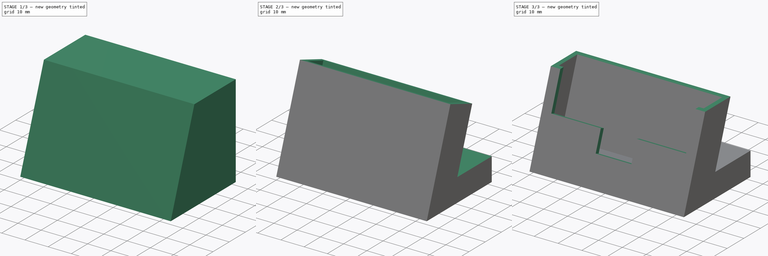
[diagram: build sequence overview — one tinted view per stage of 3, left to right]
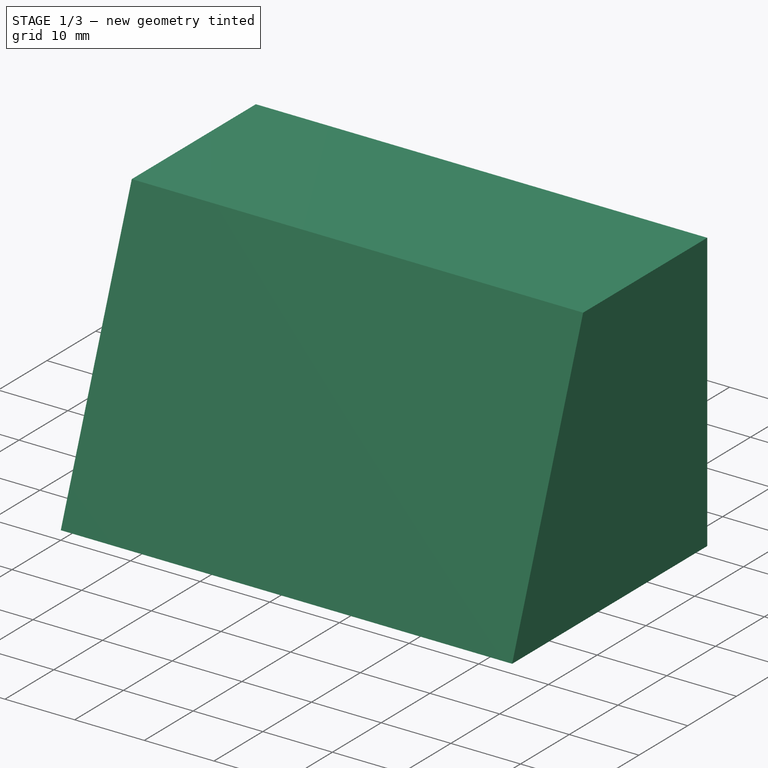
[diagram: stage 1 of 3 — iso view after this stage's code; geometry added in this stage tinted green]
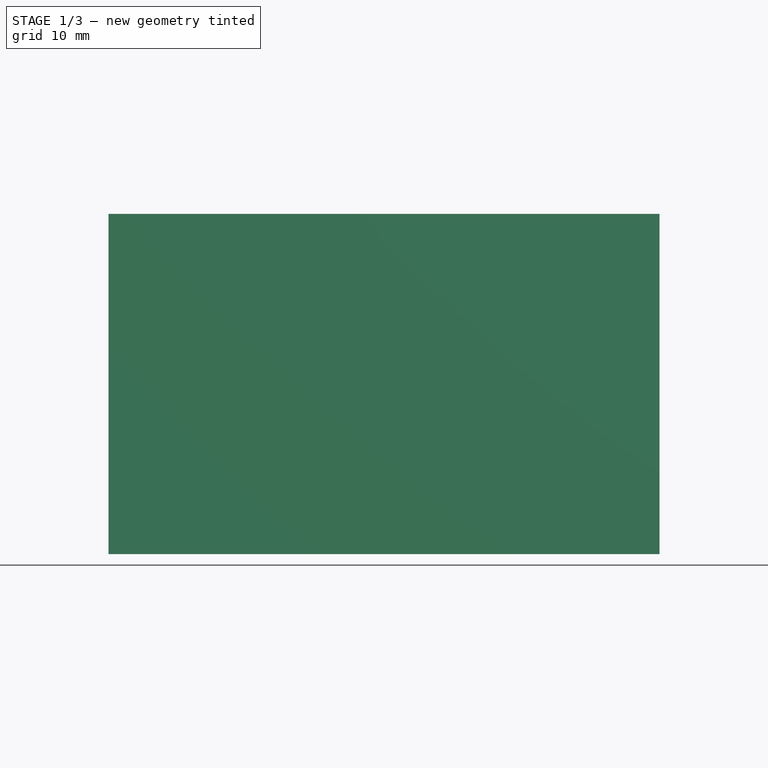
[diagram: stage 1 of 3 — front view after this stage's code; geometry added in this stage tinted green]
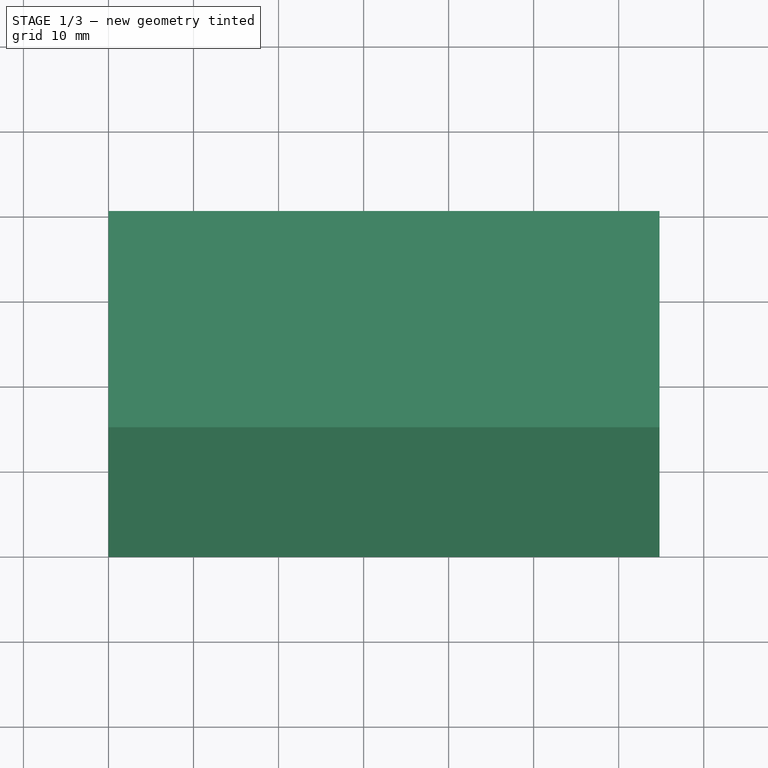
[diagram: stage 1 of 3 — top view after this stage's code; geometry added in this stage tinted green]
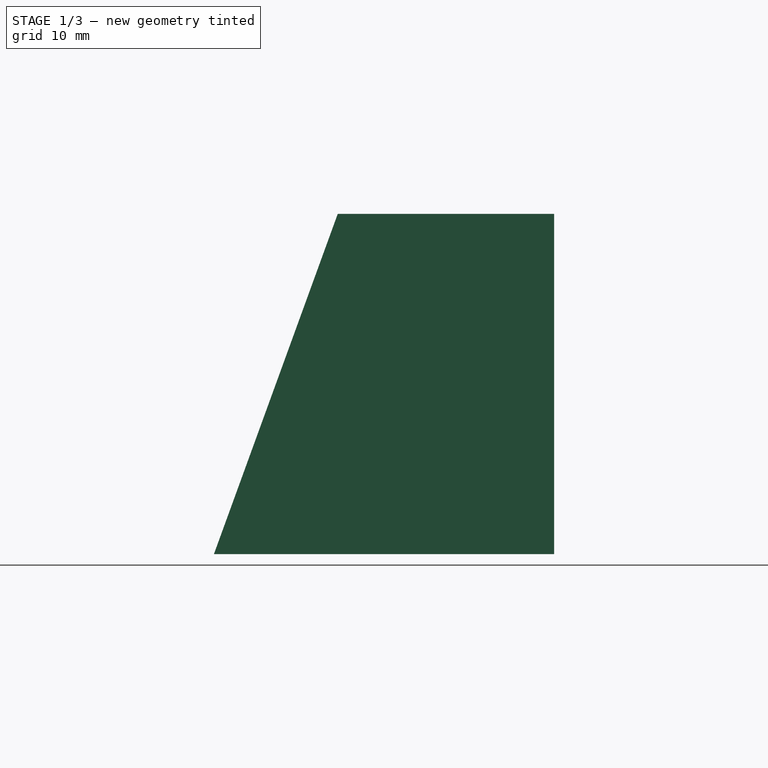
[diagram: stage 1 of 3 — right view after this stage's code; geometry added in this stage tinted green]
FCSTD DOCUMENT  (FreeCAD 0.16R6706 (Git))
Label: dock2
License: All rights reserved
LicenseURL: http://en.wikipedia.org/wiki/All_rights_reserved
objects: Sketcher::SketchObject×7, PartDesign::Pocket×6, PartDesign::Pad×1
note: 21 computed .brp shape members not serialized (recipe doc carries the construction recipe); baked Part::Feature solids carry a one-line shape summary decoded from their .brp

FEATURE [Sketcher::SketchObject] Sketch
  sketch-geometry (7):
    g0: LineSegment [constr] StartX=2 StartY=5.79943 StartZ=0 EndX=62.8 EndY=5.79943 EndZ=0
    g1: LineSegment StartX=0 StartY=0 StartZ=0 EndX=64.8 EndY=0 EndZ=0
    g2: LineSegment StartX=64.8 StartY=0 StartZ=0 EndX=64.8 EndY=40 EndZ=0
    g3: LineSegment StartX=64.8 StartY=40 StartZ=0 EndX=0 EndY=40 EndZ=0
    g4: LineSegment StartX=0 StartY=40 StartZ=0 EndX=0 EndY=0 EndZ=0
    g5: LineSegment [constr] StartX=2 StartY=5.79943 StartZ=0 EndX=0 EndY=5.79943 EndZ=0
    g6: LineSegment [constr] StartX=62.8 StartY=5.79943 StartZ=0 EndX=64.8 EndY=5.79943 EndZ=0
  constraints (20):
    c: Horizontal(g0)
    c: DistanceX(g0,g0) = 60.8
    c: Coincident(g1,g2)
    c: Coincident(g2,g3)
    c: Coincident(g3,g4)
    c: Coincident(g4,g1)
    c: Horizontal(g1)
    c: Horizontal(g3)
    c: Vertical(g2)
    c: Vertical(g4)
    c: Coincident(g1,g-1)
    c: Coincident(g5,g0)
    c: PointOnObject(g5,g4)
    c: Horizontal(g5)
    c: DistanceX(g5,g5) = 2
    c: Coincident(g6,g0)
    c: PointOnObject(g6,g2)
    c: Equal(g6,g5)
    c: Horizontal(g6)
    c: DistanceY(g2,g2) = 40
FEATURE [PartDesign::Pad] Pad
  Length = 40
  Length2 = 100
  Sketch = -> Sketch
  Type = 0
FEATURE [Sketcher::SketchObject] Sketch001
  ExternalGeometry = -> [Pad]
  Placement = pos=(64.8,0,0) rot=(0.57735,0.57735,0.57735;2.0944rad)
  Support = -> Pad [Face2]
  sketch-geometry (3):
    g0: LineSegment StartX=0 StartY=0 StartZ=0 EndX=0 EndY=40 EndZ=0
    g1: LineSegment StartX=0 StartY=0 StartZ=0 EndX=14.5588 EndY=40 EndZ=0
    g2: LineSegment StartX=14.5588 StartY=40 StartZ=0 EndX=0 EndY=40 EndZ=0
  constraints (7):
    c: Coincident(g0,g-1)
    c: Coincident(g0,g-4)
    c: Coincident(g1,g-1)
    c: PointOnObject(g1,g-4)
    c: Coincident(g2,g1)
    c: Coincident(g2,g0)
    c: Angle(g1,g-3) = 0.349066
FEATURE [PartDesign::Pocket] Pocket
  Length = 5
  Sketch = -> Sketch001
  Type = 1
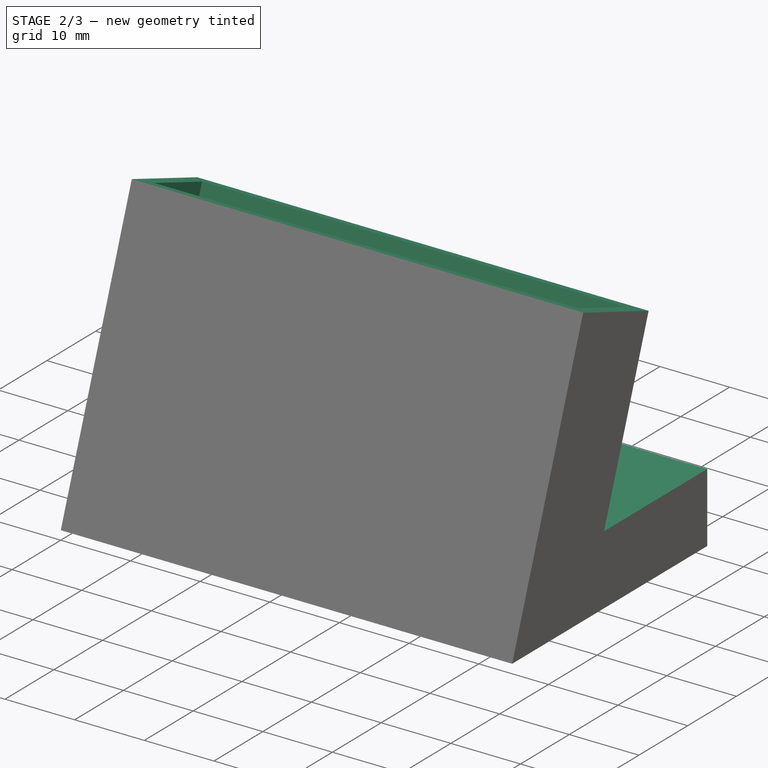
[diagram: stage 2 of 3 — iso view after this stage's code; geometry added in this stage tinted green]
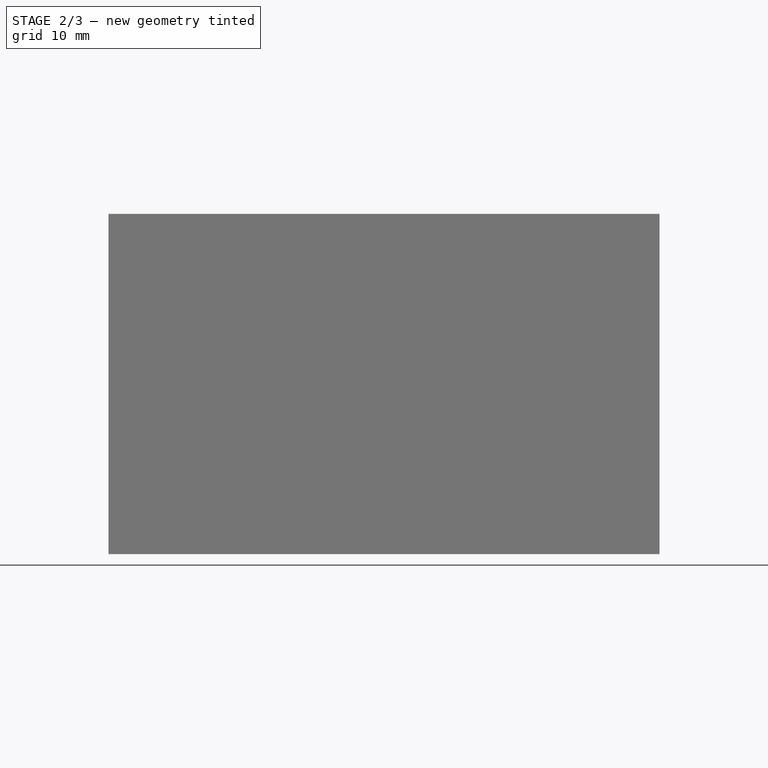
[diagram: stage 2 of 3 — front view after this stage's code; geometry added in this stage tinted green]
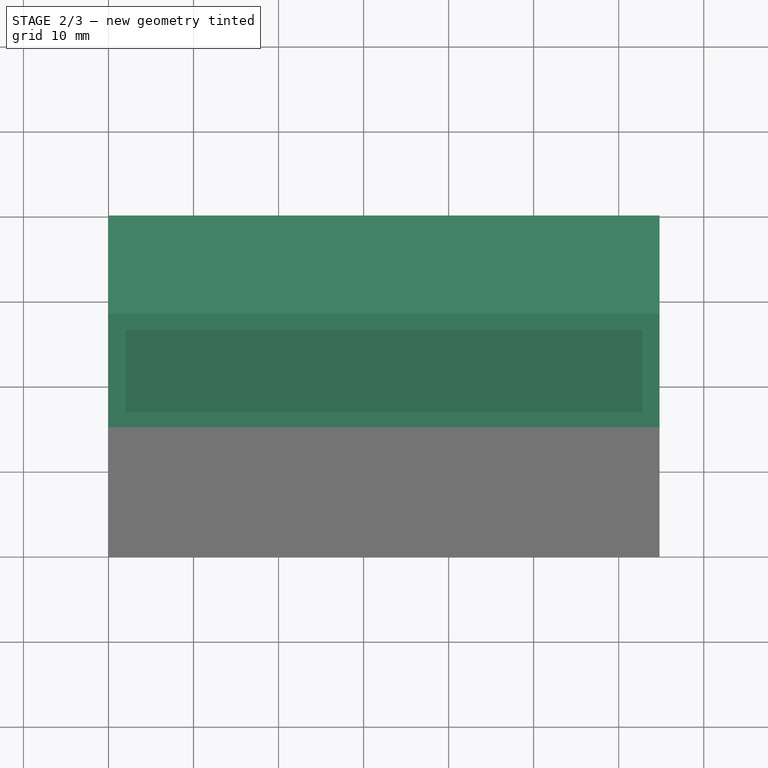
[diagram: stage 2 of 3 — top view after this stage's code; geometry added in this stage tinted green]
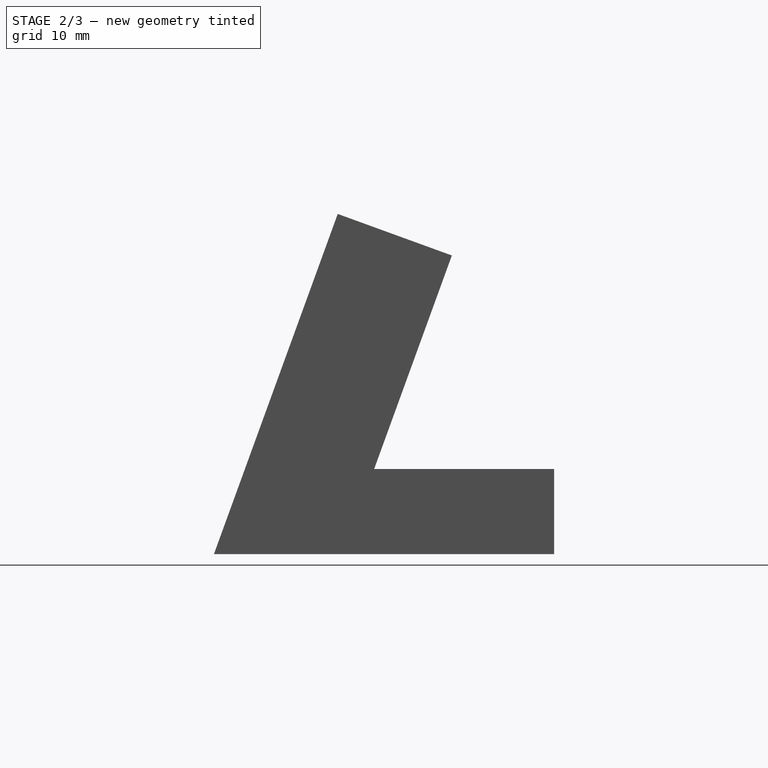
[diagram: stage 2 of 3 — right view after this stage's code; geometry added in this stage tinted green]
FEATURE [Sketcher::SketchObject] Sketch002
  ExternalGeometry = -> [Pocket]
  Placement = pos=(64.8,0,0) rot=(0.57735,0.57735,0.57735;2.0944rad)
  Support = -> Pocket [Face3]
  sketch-geometry (4):
    g0: LineSegment StartX=29.7588 StartY=40 StartZ=0 EndX=18.8397 EndY=10 EndZ=0
    g1: LineSegment StartX=18.8397 StartY=10 StartZ=0 EndX=40 EndY=10 EndZ=0
    g2: LineSegment StartX=29.7588 StartY=40 StartZ=0 EndX=40 EndY=40 EndZ=0
    g3: LineSegment StartX=40 StartY=40 StartZ=0 EndX=40 EndY=10 EndZ=0
  constraints (11):
    c: PointOnObject(g0,g-3)
    c: Coincident(g1,g0)
    c: PointOnObject(g1,g-4)
    c: Horizontal(g1)
    c: Parallel(g0,g-5)
    c: Coincident(g2,g0)
    c: Coincident(g2,g-4)
    c: Coincident(g3,g2)
    c: Coincident(g3,g1)
    c: DistanceX(g-5,g0) = 15.2
    c: DistanceY(g-4,g1) = 10
FEATURE [PartDesign::Pocket] Pocket001
  Length = 5
  Sketch = -> Sketch002
  Type = 1
FEATURE [Sketcher::SketchObject] Sketch003
  ExternalGeometry = -> [Pocket001]
  Placement = pos=(64.8,0,0) rot=(0.57735,0.57735,0.57735;2.0944rad)
  Support = -> Pocket001 [Face3]
  sketch-geometry (3):
    g0: LineSegment StartX=14.5588 StartY=40 StartZ=0 EndX=27.9807 EndY=35.1148 EndZ=0
    g1: LineSegment StartX=29.7588 StartY=40 StartZ=0 EndX=27.9807 EndY=35.1148 EndZ=0
    g2: LineSegment StartX=29.7588 StartY=40 StartZ=0 EndX=14.5588 EndY=40 EndZ=0
  constraints (7):
    c: Coincident(g0,g-3)
    c: PointOnObject(g0,g-4)
    c: Coincident(g1,g-4)
    c: Coincident(g1,g0)
    c: Coincident(g2,g1)
    c: Coincident(g2,g0)
    c: Perpendicular(g-4,g0)
FEATURE [PartDesign::Pocket] Pocket002
  Length = 5
  Sketch = -> Sketch003
  Type = 1
FEATURE [Sketcher::SketchObject] Sketch004
  ExternalGeometry = -> [Pocket002]
  Placement = pos=(0,14.5588,40) rot=(-1,0,0;0.349066rad)
  Support = -> Pocket002 [Face6]
  sketch-geometry (8):
    g0: LineSegment StartX=2 StartY=12.2833 StartZ=0 EndX=62.8 EndY=12.2833 EndZ=0
    g1: LineSegment StartX=62.8 StartY=12.2833 StartZ=0 EndX=62.8 EndY=1.88333 EndZ=0
    g2: LineSegment StartX=62.8 StartY=1.88333 StartZ=0 EndX=2 EndY=1.88333 EndZ=0
    g3: LineSegment StartX=2 StartY=1.88333 StartZ=0 EndX=2 EndY=12.2833 EndZ=0
    g4: LineSegment [constr] StartX=2 StartY=12.2833 StartZ=0 EndX=0 EndY=12.2833 EndZ=0
    g5: LineSegment [constr] StartX=2 StartY=12.2833 StartZ=0 EndX=2 EndY=14.2833 EndZ=0
    g6: LineSegment [constr] StartX=62.8 StartY=12.2833 StartZ=0 EndX=64.8 EndY=12.2833 EndZ=0
    g7: LineSegment [constr] StartX=62.8 StartY=12.2833 StartZ=0 EndX=62.8 EndY=14.2833 EndZ=0
  constraints (25):
    c: Coincident(g0,g1)
    c: Coincident(g1,g2)
    c: Coincident(g2,g3)
    c: Coincident(g3,g0)
    c: Horizontal(g0)
    c: Horizontal(g2)
    c: Vertical(g1)
    c: Vertical(g3)
    c: Coincident(g4,g0)
    c: PointOnObject(g4,g-3)
    c: Horizontal(g4)
    c: DistanceX(g4,g4) = 2
    c: Coincident(g5,g0)
    c: PointOnObject(g5,g-4)
    c: Vertical(g5)
    c: DistanceY(g5,g5) = 2
    c: Coincident(g6,g0)
    c: PointOnObject(g6,g-6)
    c: Horizontal(g6)
    c: Equal(g6,g4)
    c: Coincident(g7,g0)
    c: PointOnObject(g7,g-4)
    c: Vertical(g7)
    c: Equal(g7,g5)
    c: Distance(g3) = 10.4
FEATURE [PartDesign::Pocket] Pocket003
  Length = 30
  Sketch = -> Sketch004
  Type = 0
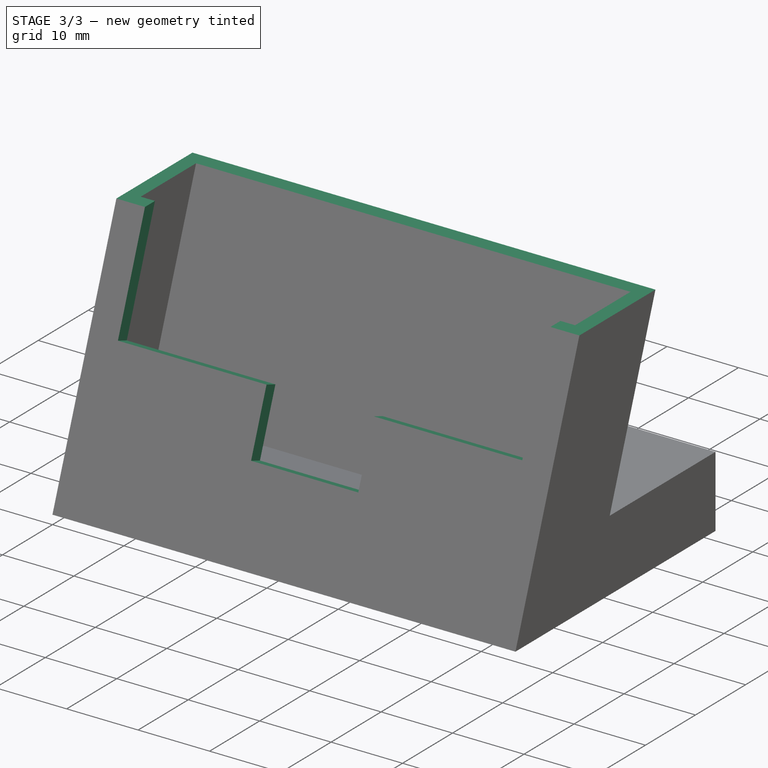
[diagram: stage 3 of 3 — iso view after this stage's code; geometry added in this stage tinted green]
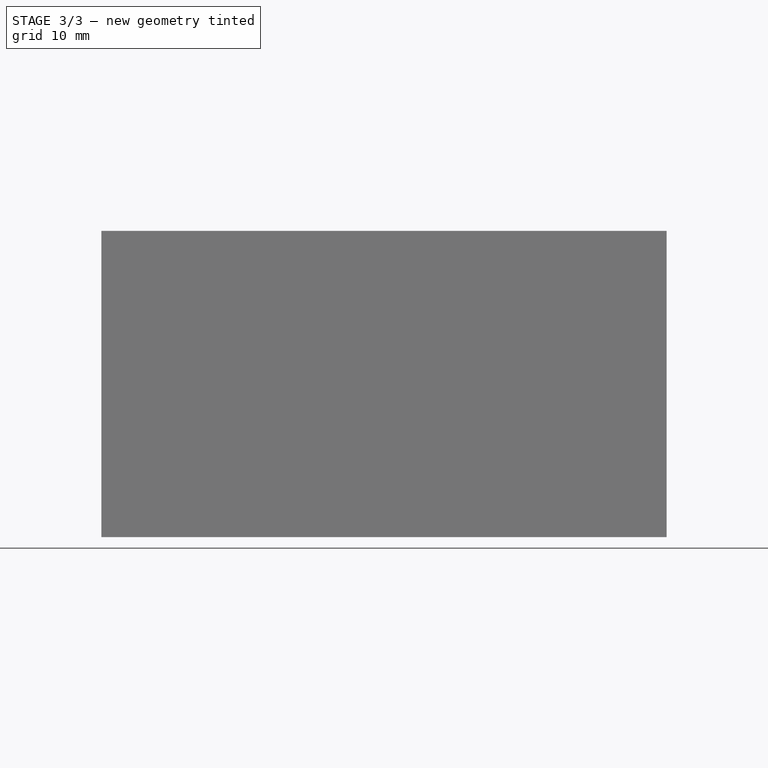
[diagram: stage 3 of 3 — front view after this stage's code; geometry added in this stage tinted green]
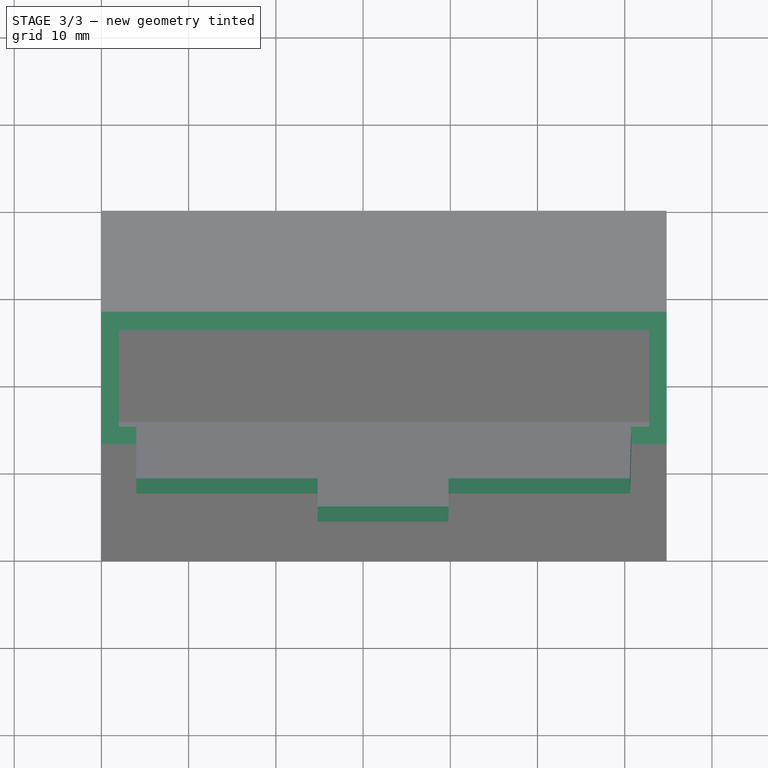
[diagram: stage 3 of 3 — top view after this stage's code; geometry added in this stage tinted green]
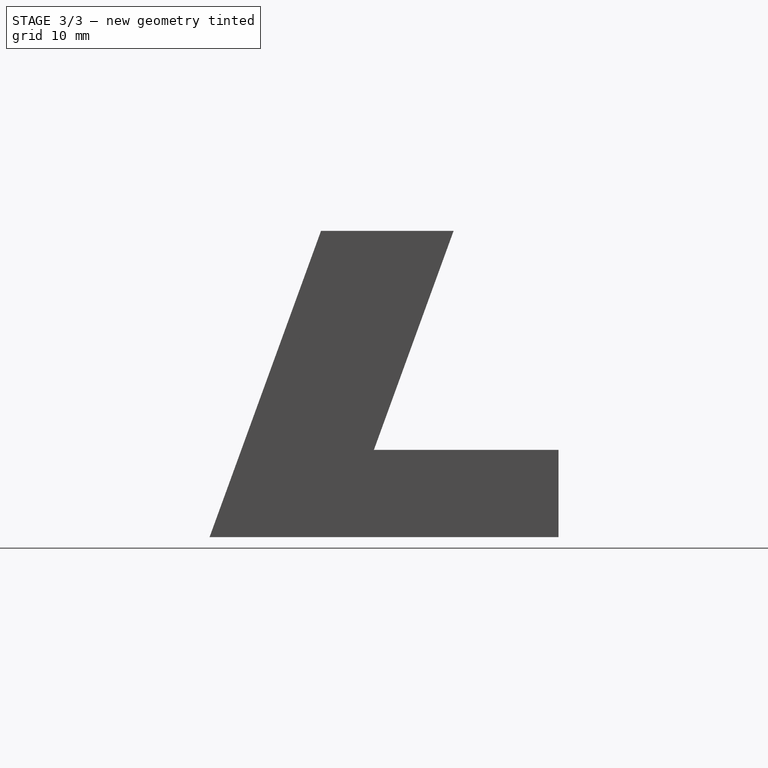
[diagram: stage 3 of 3 — right view after this stage's code; geometry added in this stage tinted green]
FEATURE [Sketcher::SketchObject] Sketch005
  ExternalGeometry = -> [Pocket003]
  Placement = pos=(0,1.76975,-0.644136) rot=(0,0.819152,0.573576;3.14159rad)
  Support = -> Pocket003 [Face12]
  sketch-geometry (12):
    g0: LineSegment StartX=-39.795 StartY=21.5671 StartZ=0 EndX=-39.795 EndY=12.5671 EndZ=0
    g1: LineSegment StartX=-24.795 StartY=21.5671 StartZ=0 EndX=-24.795 EndY=12.5671 EndZ=0
    g2: LineSegment [constr] StartX=-60.8 StartY=42.5671 StartZ=0 EndX=-60.5 EndY=12.5671 EndZ=0
    g3: LineSegment [constr] StartX=-4 StartY=42.5671 StartZ=0 EndX=-4 EndY=12.5671 EndZ=0
    g4: LineSegment [constr] StartX=-62.8 StartY=42.5671 StartZ=0 EndX=-60.8 EndY=42.5671 EndZ=0
    g5: LineSegment [constr] StartX=-2 StartY=42.5671 StartZ=0 EndX=-4 EndY=42.5671 EndZ=0
    g6: LineSegment StartX=-39.795 StartY=21.5671 StartZ=0 EndX=-60.59 EndY=21.5671 EndZ=0
    g7: LineSegment StartX=-24.795 StartY=21.5671 StartZ=0 EndX=-4 EndY=21.5671 EndZ=0
    g8: LineSegment StartX=-39.795 StartY=12.5671 StartZ=0 EndX=-24.795 EndY=12.5671 EndZ=0
    g9: LineSegment StartX=-4 StartY=21.5671 StartZ=0 EndX=-4 EndY=42.5671 EndZ=0
    g10: LineSegment StartX=-4 StartY=42.5671 StartZ=0 EndX=-60.8 EndY=42.5671 EndZ=0
    g11: LineSegment StartX=-60.8 StartY=42.5671 StartZ=0 EndX=-60.59 EndY=21.5671 EndZ=0
  constraints (33):
    c: PointOnObject(g0,g-6)
    c: Vertical(g0)
    c: DistanceY(g0,g0) = 9
    c: PointOnObject(g1,g-6)
    c: Vertical(g1)
    c: Equal(g1,g0)
    c: PointOnObject(g2,g-3)
    c: PointOnObject(g2,g-6)
    c: PointOnObject(g3,g-3)
    c: PointOnObject(g3,g-6)
    c: Vertical(g3)
    c: Coincident(g4,g-4)
    c: Coincident(g4,g2)
    c: DistanceX(g4,g4) = 2
    c: Coincident(g5,g-5)
    c: Coincident(g5,g3)
    c: Equal(g4,g5)
    c: Coincident(g6,g0)
    c: PointOnObject(g6,g2)
    c: Horizontal(g6)
    c: Coincident(g7,g1)
    c: PointOnObject(g7,g3)
    c: Horizontal(g7)
    c: DistanceX(g0,g1) = 15
    c: Equal(g7,g6)
    c: Coincident(g8,g0)
    c: Coincident(g8,g1)
    c: Coincident(g9,g7)
    c: Coincident(g9,g3)
    c: Coincident(g10,g3)
    c: Coincident(g10,g2)
    c: Coincident(g11,g2)
    c: Coincident(g11,g6)
FEATURE [PartDesign::Pocket] Pocket004
  Length = 5
  Sketch = -> Sketch005
  Type = 1
FEATURE [Sketcher::SketchObject] Sketch006
  ExternalGeometry = -> [Pocket004]
  Placement = pos=(64.8,0,0) rot=(0.57735,0.57735,0.57735;2.0944rad)
  Support = -> Pocket004 [Face3]
  sketch-geometry (3):
    g0: LineSegment StartX=27.9807 StartY=35.1148 StartZ=0 EndX=12.7807 EndY=35.1148 EndZ=0
    g1: LineSegment StartX=12.7807 StartY=35.1148 StartZ=0 EndX=14.5588 EndY=40 EndZ=0
    g2: LineSegment StartX=14.5588 StartY=40 StartZ=0 EndX=27.9807 EndY=35.1148 EndZ=0
  constraints (7):
    c: Coincident(g0,g-4)
    c: PointOnObject(g0,g-3)
    c: Horizontal(g0)
    c: Coincident(g1,g0)
    c: Coincident(g1,g-4)
    c: Coincident(g2,g1)
    c: Coincident(g2,g0)
FEATURE [PartDesign::Pocket] Pocket005
  Length = 5
  Sketch = -> Sketch006
  Type = 1
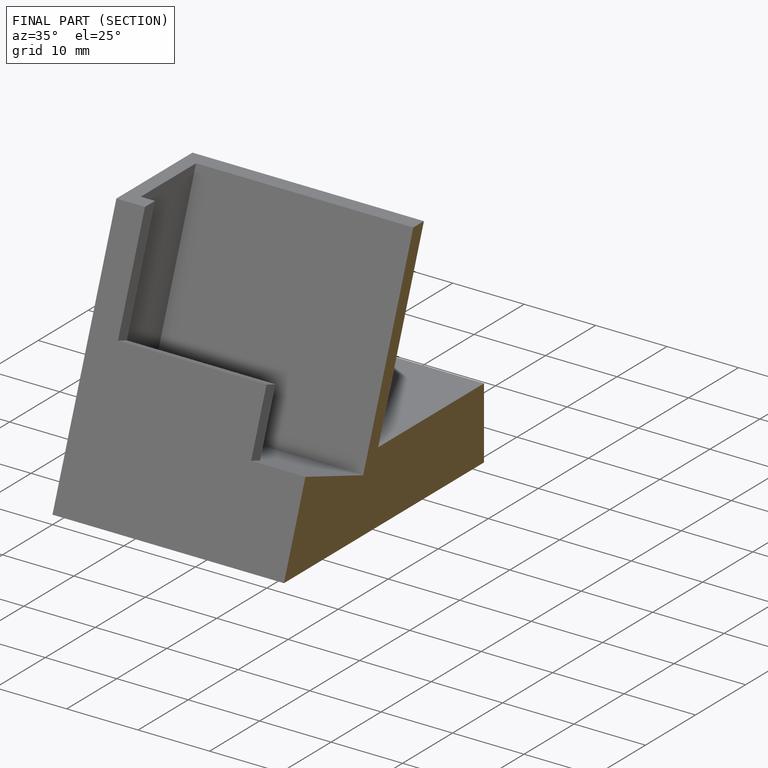
[diagram: finished part — half-section view (interior)]
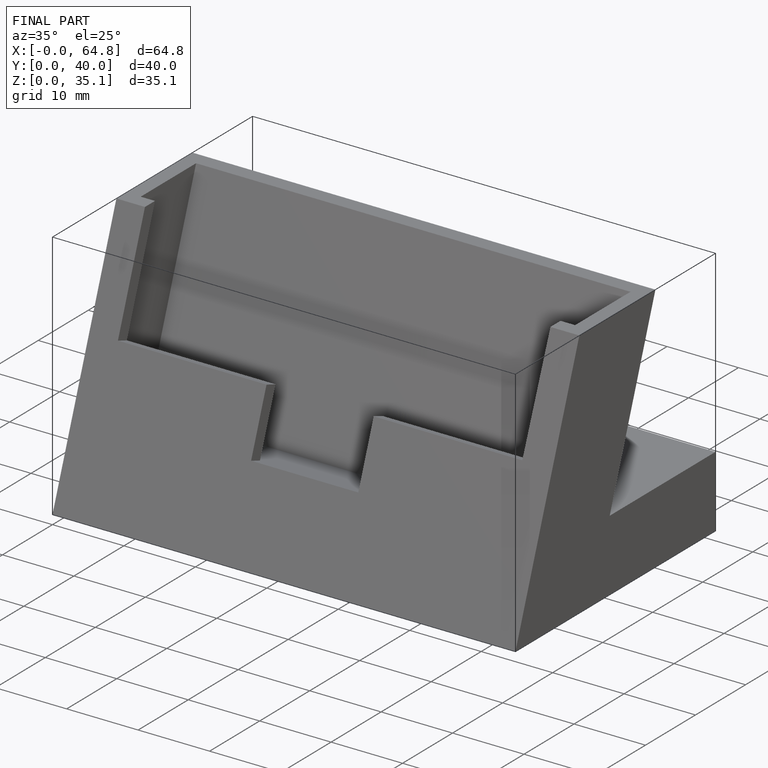
[diagram: finished part — iso view with bounding-box wireframe]
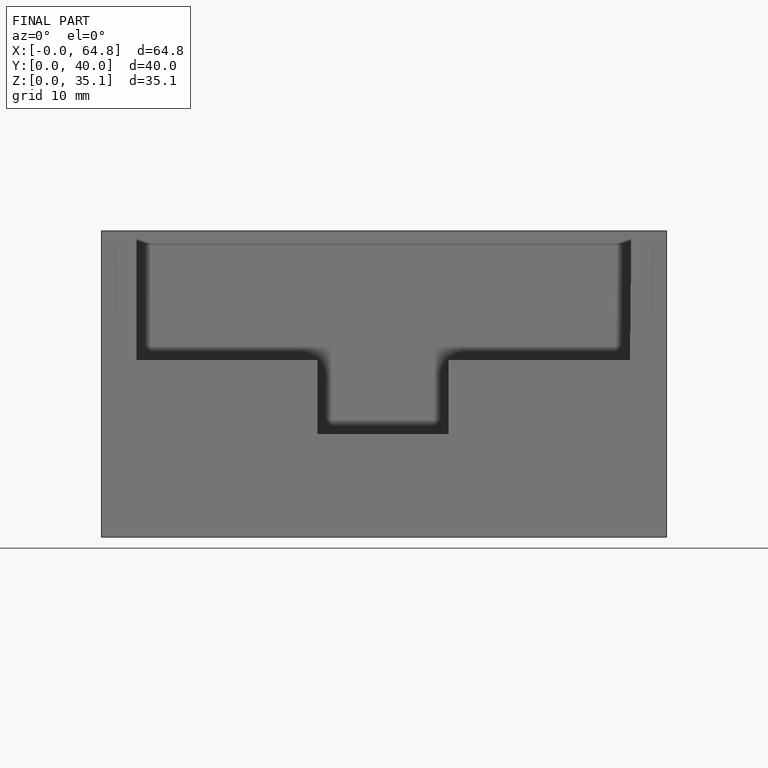
[diagram: finished part — front view with bounding-box wireframe]
